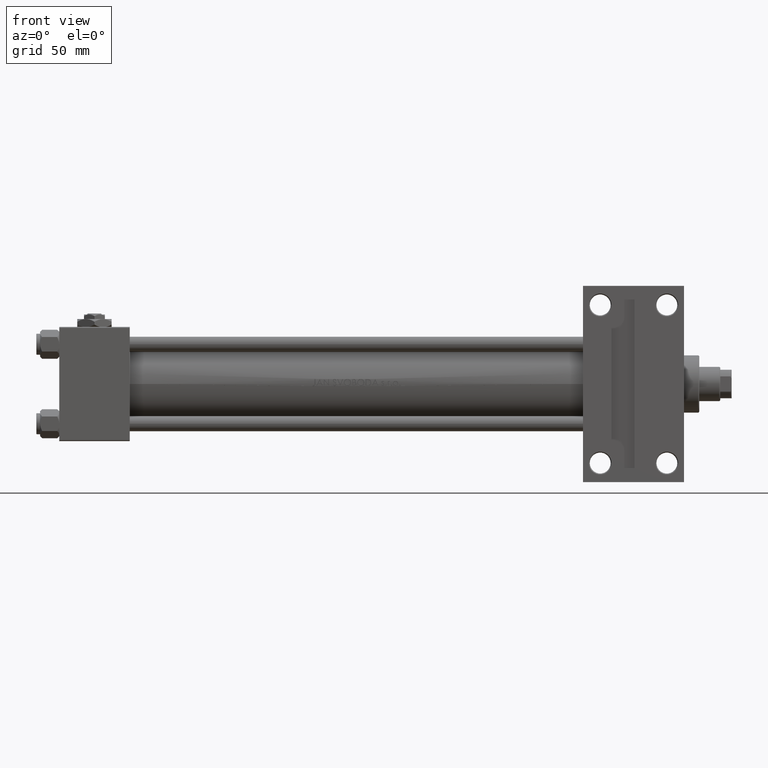
[diagram: clean part render]
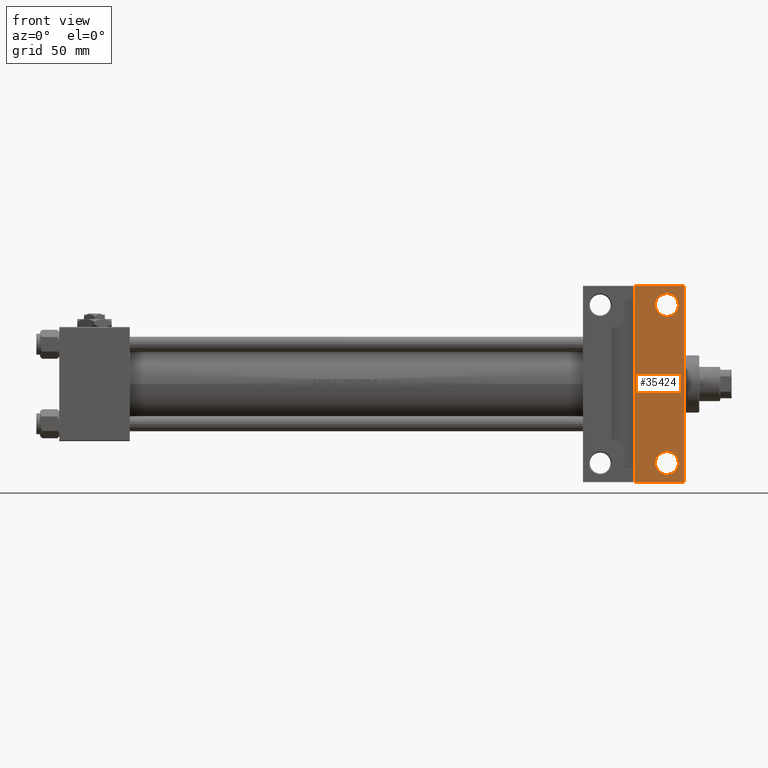
[diagram: same view with one face highlighted and labeled with its STEP entity id]
A machine part, front view. The second image highlights one B-rep face of the part: STEP entity #35424.
In plain terms, the highlighted planar face has unit normal (0, -1, -0).
Its self-contained STEP definition (entity closure, byte-faithful):
#268 = FACE_BOUND ( 'NONE', #21753, .T. ) ;
#1603 = CARTESIAN_POINT ( 'NONE',  ( 318.9999999999999432, -41.50000000000000000, -30.00000000000000000 ) ) ;
#1962 = DIRECTION ( 'NONE',  ( -0.000000000000000000, -1.156482317317871478E-16, 1.000000000000000000 ) ) ;
#3020 = ORIENTED_EDGE ( 'NONE', *, *, #13098, .T. ) ;
#3350 = FACE_BOUND ( 'NONE', #16759, .T. ) ;
#3962 = CARTESIAN_POINT ( 'NONE',  ( 302.0000000000000000, -51.49999999999995026, -29.99999999999999645 ) ) ;
#4008 = EDGE_CURVE ( 'NONE', #7197, #47172, #37360, .T. ) ;
#4197 = VERTEX_POINT ( 'NONE', #25216 ) ;
#4376 = EDGE_CURVE ( 'NONE', #29041, #47172, #12098, .T. ) ;
#5488 = AXIS2_PLACEMENT_3D ( 'NONE', #10672, #1962, #26814 ) ;
#5765 = VECTOR ( 'NONE', #37099, 1000.000000000000000 ) ;
#6058 = EDGE_CURVE ( 'NONE', #31322, #4197, #29693, .T. ) ;
#7197 = VERTEX_POINT ( 'NONE', #17267 ) ;
#8181 = CIRCLE ( 'NONE', #40989, 5.999499999999907907 ) ;
#8191 = DIRECTION ( 'NONE',  ( -0.000000000000000000, -1.156482317317871478E-16, 1.000000000000000000 ) ) ;
#8611 = VECTOR ( 'NONE', #48769, 1000.000000000000000 ) ;
#9123 = VECTOR ( 'NONE', #25268, 1000.000000000000000 ) ;
#9550 = DIRECTION ( 'NONE',  ( 0.000000000000000000, 1.000000000000000000, 0.000000000000000000 ) ) ;
#10519 = VERTEX_POINT ( 'NONE', #21806 ) ;
#10672 = CARTESIAN_POINT ( 'NONE',  ( 318.9999999999999432, -41.50000000000000000, -30.00000000000000000 ) ) ;
#10776 = ORIENTED_EDGE ( 'NONE', *, *, #4008, .F. ) ;
#11366 = VERTEX_POINT ( 'NONE', #19896 ) ;
#12098 = LINE ( 'NONE', #20308, #14012 ) ;
#13098 = EDGE_CURVE ( 'NONE', #7197, #10519, #37213, .T. ) ;
#13353 = CARTESIAN_POINT ( 'NONE',  ( 274.9999999999999432, 51.49999999999996447, -29.99999999999999645 ) ) ;
#14012 = VECTOR ( 'NONE', #28521, 1000.000000000000000 ) ;
#15831 = CARTESIAN_POINT ( 'NONE',  ( 324.9994999999998981, 41.50000000000000000, -29.99999999999999289 ) ) ;
#16030 = ORIENTED_EDGE ( 'NONE', *, *, #26800, .T. ) ;
#16759 = EDGE_LOOP ( 'NONE', ( #16030, #31183 ) ) ;
#17267 = CARTESIAN_POINT ( 'NONE',  ( 302.0000000000000000, 51.49999999999996447, -29.99999999999999645 ) ) ;
#18330 = CARTESIAN_POINT ( 'NONE',  ( 302.0000000000000000, -51.49999999999995026, -29.99999999999999645 ) ) ;
#18989 = DIRECTION ( 'NONE',  ( 0.000000000000000000, 1.156482317317871478E-16, -1.000000000000000000 ) ) ;
#19497 = FACE_OUTER_BOUND ( 'NONE', #37357, .T. ) ;
#19742 = CARTESIAN_POINT ( 'NONE',  ( 318.9999999999999432, 41.50000000000000000, -29.99999999999999289 ) ) ;
#19896 = CARTESIAN_POINT ( 'NONE',  ( 313.0004999999999882, 41.50000000000000000, -29.99999999999999289 ) ) ;
#20114 = AXIS2_PLACEMENT_3D ( 'NONE', #43207, #50664, #31142 ) ;
#20308 = CARTESIAN_POINT ( 'NONE',  ( 274.9999999999999432, -51.50000000000002132, -29.99999999999999645 ) ) ;
#20584 = EDGE_CURVE ( 'NONE', #4197, #31322, #27607, .T. ) ;
#20694 = AXIS2_PLACEMENT_3D ( 'NONE', #1603, #24687, #9550 ) ;
#20864 = CARTESIAN_POINT ( 'NONE',  ( 313.0004999999999882, -41.50000000000000000, -30.00000000000000000 ) ) ;
#21753 = EDGE_LOOP ( 'NONE', ( #33975, #21852 ) ) ;
#21806 = CARTESIAN_POINT ( 'NONE',  ( 327.9999999999999432, 51.49999999999995737, -29.99999999999999645 ) ) ;
#21852 = ORIENTED_EDGE ( 'NONE', *, *, #20584, .T. ) ;
#22471 = ORIENTED_EDGE ( 'NONE', *, *, #31075, .T. ) ;
#22961 = AXIS2_PLACEMENT_3D ( 'NONE', #34936, #18989, #43127 ) ;
#24687 = DIRECTION ( 'NONE',  ( -0.000000000000000000, -1.156482317317871478E-16, 1.000000000000000000 ) ) ;
#25216 = CARTESIAN_POINT ( 'NONE',  ( 324.9994999999998981, -41.50000000000000000, -30.00000000000000000 ) ) ;
#25268 = DIRECTION ( 'NONE',  ( -0.000000000000000000, -1.000000000000000000, -0.000000000000000000 ) ) ;
#26266 = LINE ( 'NONE', #38114, #5765 ) ;
#26800 = EDGE_CURVE ( 'NONE', #11366, #42198, #8181, .T. ) ;
#26814 = DIRECTION ( 'NONE',  ( 0.000000000000000000, 1.000000000000000000, 0.000000000000000000 ) ) ;
#27607 = CIRCLE ( 'NONE', #5488, 5.999499999999907907 ) ;
#28521 = DIRECTION ( 'NONE',  ( -1.000000000000000000, 1.309225264888156623E-16, -0.000000000000000000 ) ) ;
#29041 = VERTEX_POINT ( 'NONE', #29497 ) ;
#29497 = CARTESIAN_POINT ( 'NONE',  ( 327.9999999999999432, -51.50000000000002842, -29.99999999999999645 ) ) ;
#29693 = CIRCLE ( 'NONE', #20694, 5.999499999999907907 ) ;
#31075 = EDGE_CURVE ( 'NONE', #10519, #29041, #26266, .T. ) ;
#31142 = DIRECTION ( 'NONE',  ( 0.000000000000000000, 1.000000000000000000, 0.000000000000000000 ) ) ;
#31183 = ORIENTED_EDGE ( 'NONE', *, *, #49789, .T. ) ;
#31322 = VERTEX_POINT ( 'NONE', #20864 ) ;
#33975 = ORIENTED_EDGE ( 'NONE', *, *, #6058, .T. ) ;
#34936 = CARTESIAN_POINT ( 'NONE',  ( 327.9999999999999432, 30.00000000000000000, -29.99999999999999289 ) ) ;
#35424 = ADVANCED_FACE ( 'NONE', ( #19497, #268, #3350 ), #39292, .T. ) ;
#35675 = DIRECTION ( 'NONE',  ( 0.000000000000000000, 1.000000000000000000, 0.000000000000000000 ) ) ;
#37099 = DIRECTION ( 'NONE',  ( 0.000000000000000000, -1.000000000000000000, -1.156482317317871478E-16 ) ) ;
#37213 = LINE ( 'NONE', #13353, #8611 ) ;
#37357 = EDGE_LOOP ( 'NONE', ( #10776, #3020, #22471, #40122 ) ) ;
#37360 = LINE ( 'NONE', #18330, #9123 ) ;
#38114 = CARTESIAN_POINT ( 'NONE',  ( 327.9999999999999432, 30.00000000000000000, -29.99999999999999289 ) ) ;
#39292 = PLANE ( 'NONE',  #22961 ) ;
#40122 = ORIENTED_EDGE ( 'NONE', *, *, #4376, .T. ) ;
#40989 = AXIS2_PLACEMENT_3D ( 'NONE', #19742, #8191, #35675 ) ;
#42198 = VERTEX_POINT ( 'NONE', #15831 ) ;
#42247 = CIRCLE ( 'NONE', #20114, 5.999499999999907907 ) ;
#43127 = DIRECTION ( 'NONE',  ( 0.000000000000000000, 1.000000000000000000, 1.156482317317871478E-16 ) ) ;
#43207 = CARTESIAN_POINT ( 'NONE',  ( 318.9999999999999432, 41.50000000000000000, -29.99999999999999289 ) ) ;
#47172 = VERTEX_POINT ( 'NONE', #3962 ) ;
#48769 = DIRECTION ( 'NONE',  ( 1.000000000000000000, -1.309225264888156623E-16, 0.000000000000000000 ) ) ;
#49789 = EDGE_CURVE ( 'NONE', #42198, #11366, #42247, .T. ) ;
#50664 = DIRECTION ( 'NONE',  ( -0.000000000000000000, -1.156482317317871478E-16, 1.000000000000000000 ) ) ;